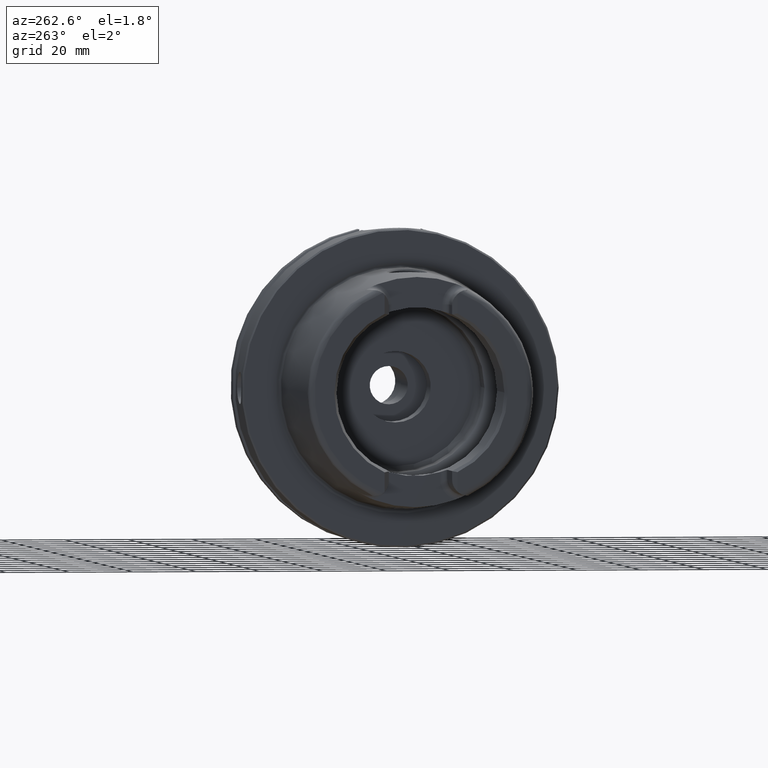
[diagram: clean part render]
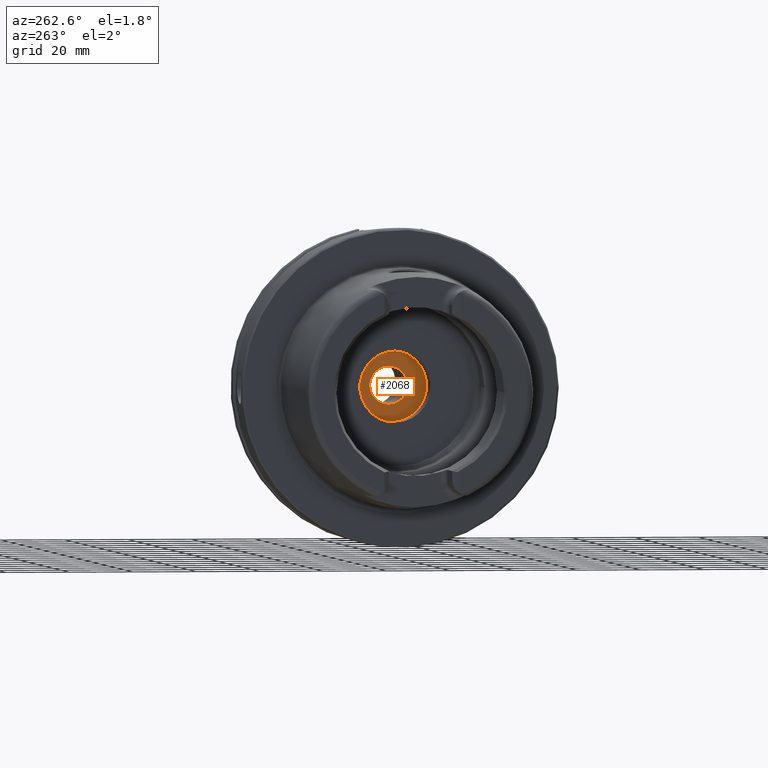
[diagram: same view with one face highlighted and labeled with its STEP entity id]
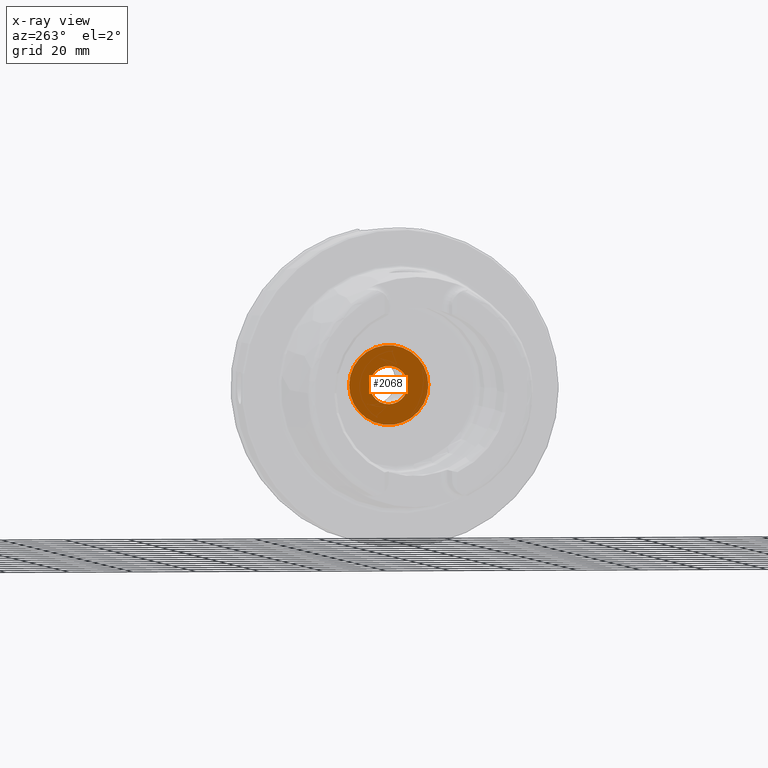
[diagram: x-ray of the same camera — body ghosted, the highlighted face saturated]
A machine part, auxiliary view. The second image highlights one B-rep face of the part: STEP entity #2068.
The next image is the same camera in x-ray: the body ghosted, the highlighted face saturated — about 0% of this face is hidden behind the body in this view.
In plain terms, the highlighted planar face has unit normal (1, 0, 0).
Its self-contained STEP definition (entity closure, byte-faithful):
#94=FACE_BOUND('',#435,.T.);
#130=PLANE('',#2325);
#306=FACE_OUTER_BOUND('',#434,.T.);
#434=EDGE_LOOP('',(#1865));
#435=EDGE_LOOP('',(#1866));
#692=CIRCLE('',#2146,6.);
#780=CIRCLE('',#2326,12.5);
#832=VERTEX_POINT('',#3072);
#994=VERTEX_POINT('',#4446);
#1045=EDGE_CURVE('',#832,#832,#692,.T.);
#1293=EDGE_CURVE('',#994,#994,#780,.T.);
#1865=ORIENTED_EDGE('',*,*,#1293,.T.);
#1866=ORIENTED_EDGE('',*,*,#1045,.T.);
#2068=ADVANCED_FACE('',(#306,#94),#130,.F.);
#2146=AXIS2_PLACEMENT_3D('',#3073,#2455,#2456);
#2325=AXIS2_PLACEMENT_3D('',#4445,#2897,#2898);
#2326=AXIS2_PLACEMENT_3D('',#4447,#2899,#2900);
#2455=DIRECTION('center_axis',(1.,0.,0.));
#2456=DIRECTION('ref_axis',(0.,-1.06221930374718E-16,1.));
#2897=DIRECTION('center_axis',(1.,0.,0.));
#2898=DIRECTION('ref_axis',(0.,0.,-1.));
#2899=DIRECTION('center_axis',(-1.,0.,0.));
#2900=DIRECTION('ref_axis',(0.,0.,1.));
#3072=CARTESIAN_POINT('',(28.5,1.37211966173672E-15,-6.));
#3073=CARTESIAN_POINT('Origin',(28.5,0.,0.));
#4445=CARTESIAN_POINT('Origin',(28.5,12.5,0.));
#4446=CARTESIAN_POINT('',(28.5,-12.5,1.53080849893419E-15));
#4447=CARTESIAN_POINT('Origin',(28.5,0.,0.));